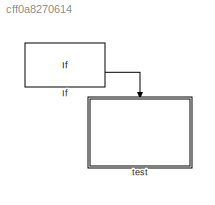
MODEL slx_cff0a8270614
KIND model
BLOCK [If] If
  Ports = [1, 2]
  SampleTime = ts_ambairp_proc1
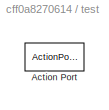
BLOCK [SubSystem] test 
  Ports = [0, 0, 0, 0, 0, 0, 0, 1]
  RequestExecContextInheritance = off
  ShowPortLabels = none
  TreatAsAtomicUnit = on
BLOCK [ActionPort] test /Action Port
  ActionType = else
  AttributesFormatString = %<InitializeStates>
LINE If:2 -> test :ifaction
